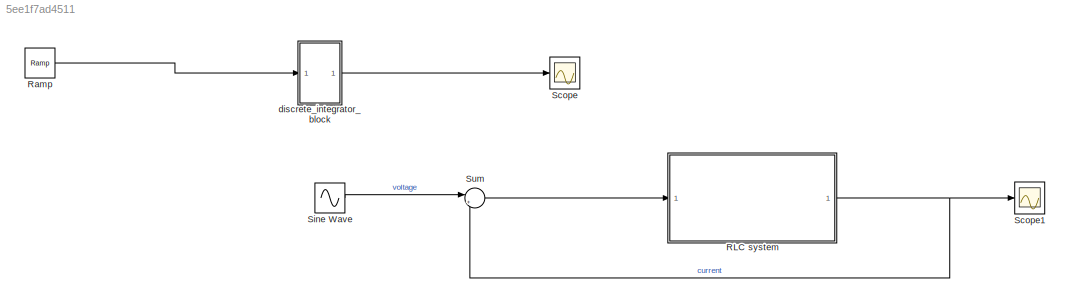
MODEL slx_5ee1f7ad4511
KIND model
CONFIG AbsTol = auto
CONFIG EnableMultiTasking = off
CONFIG FixedStep = 1e-3
CONFIG MaxStep = 1e-3
CONFIG MinStep = auto
CONFIG RelTol = 1e-3
CONFIG SampleTimeConstraint = Unconstrained
CONFIG SolverName = FixedStepDiscrete
CONFIG StartTime = 0.0
CONFIG StopTime = 10.0
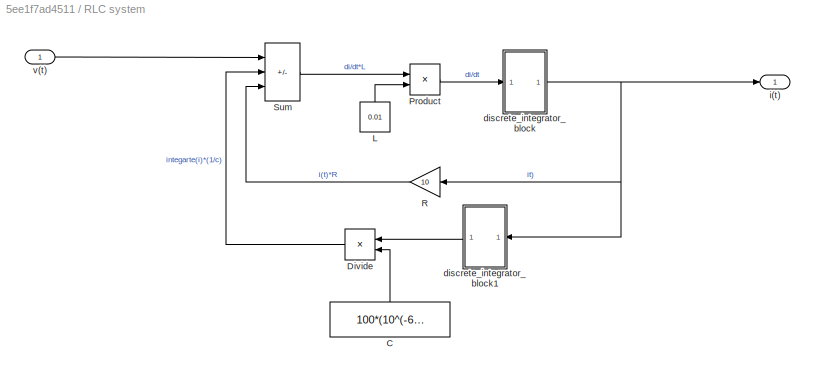
BLOCK [SubSystem] RLC system
BLOCK [Constant] RLC system/C
  NameLocation = right
  Value = 100*(10^(-6))
BLOCK [Product] RLC system/Divide
  Inputs = */
  NameLocation = top
BLOCK [Constant] RLC system/L
  NameLocation = right
  Value = 0.01
BLOCK [Product] RLC system/Product
BLOCK [Gain] RLC system/R
  Gain = 10
  NameLocation = top
BLOCK [Sum] RLC system/Sum
  IconShape = rectangular
  Inputs = |+|-|-
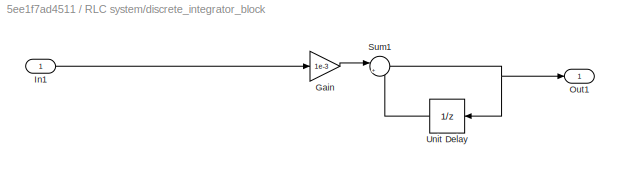
BLOCK [SubSystem] RLC system/discrete_integrator_block
BLOCK [Gain] RLC system/discrete_integrator_block/Gain
  Gain = 1e-3
BLOCK [Inport] RLC system/discrete_integrator_block/In1
BLOCK [Outport] RLC system/discrete_integrator_block/Out1
BLOCK [Sum] RLC system/discrete_integrator_block/Sum1
  Inputs = |++
BLOCK [UnitDelay] RLC system/discrete_integrator_block/Unit Delay
  HasFrameUpgradeWarning = on
  NameLocation = top
  SampleTime = -1
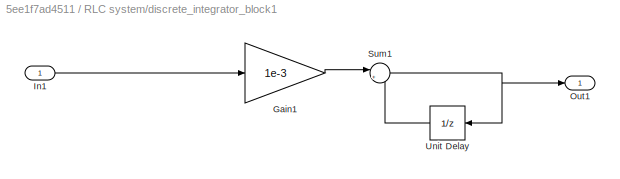
BLOCK [SubSystem] RLC system/discrete_integrator_block1
  NameLocation = top
BLOCK [Gain] RLC system/discrete_integrator_block1/Gain1
  Gain = 1e-3
BLOCK [Inport] RLC system/discrete_integrator_block1/In1
BLOCK [Outport] RLC system/discrete_integrator_block1/Out1
BLOCK [Sum] RLC system/discrete_integrator_block1/Sum1
  Inputs = |++
BLOCK [UnitDelay] RLC system/discrete_integrator_block1/Unit Delay
  HasFrameUpgradeWarning = on
  NameLocation = top
  SampleTime = -1
BLOCK [Outport] RLC system/i(t)
BLOCK [Inport] RLC system/v(t)
BLOCK [Reference] Ramp  REF=simulink/Sources/Ramp
  SourceBlock = simulink/Sources/Ramp
  SourceType = Ramp
BLOCK [Scope] Scope
  Floating = off
  NumInputPorts = 1
  ScopeSpecificationString = Simulink.scopes.TimeScopeBlockCfg('CurrentConfiguration', extmgr.ConfigurationSet(extmgr.Configuration('Core','General UI',true),extmgr.Configuration('Core','Source UI',true),extmgr.Configuration('Sources','WiredSimulink',true),extmgr.Configuration('Visuals','Time Domain',true,'SerializedDisplays',{struct('MinYLimReal','-6.1875','MaxYLimReal','55.6875','YLabelReal','','MinYLimMag','0.00000','MaxYL...<+1476ch>
BLOCK [Scope] Scope1
  Floating = off
  NumInputPorts = 1
  ScopeSpecificationString = Simulink.scopes.TimeScopeBlockCfg('CurrentConfiguration', extmgr.ConfigurationSet(extmgr.Configuration('Core','General UI',true),extmgr.Configuration('Core','Source UI',true),extmgr.Configuration('Sources','WiredSimulink',true,'DataLoggingVariableName','ScopeData1'),extmgr.Configuration('Visuals','Time Domain',true,'SerializedDisplays',{struct('MinYLimReal','-0.000011','MaxYLimReal','0.000011','YL...<+1541ch>
BLOCK [Sin] Sine Wave
  Frequency = 2000
  SampleTime = 0
BLOCK [Sum] Sum
  Inputs = |+-
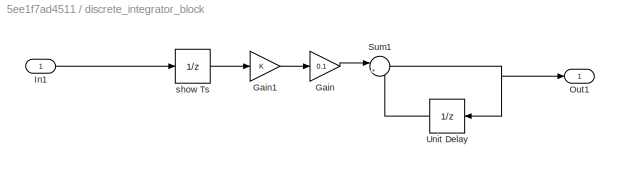
BLOCK [SubSystem] discrete_integrator_block
BLOCK [Gain] discrete_integrator_block/Gain
  Gain = 0.1
BLOCK [Gain] discrete_integrator_block/Gain1
BLOCK [Inport] discrete_integrator_block/In1
BLOCK [Outport] discrete_integrator_block/Out1
BLOCK [Sum] discrete_integrator_block/Sum1
  Inputs = |++
BLOCK [UnitDelay] discrete_integrator_block/Unit Delay
  HasFrameUpgradeWarning = on
  NameLocation = top
  SampleTime = -1
BLOCK [UnitDelay] discrete_integrator_block/show Ts
  HasFrameUpgradeWarning = on
  SampleTime = -1
LINE RLC system/C:1 -> RLC system/Divide:2
LINE RLC system/Divide:1 -> RLC system/Sum:2
LINE RLC system/L:1 -> RLC system/Product:2
LINE RLC system/Product:1 -> RLC system/discrete_integrator_block:1
LINE RLC system/R:1 -> RLC system/Sum:3
LINE RLC system/Sum:1 -> RLC system/Product:1
LINE RLC system/discrete_integrator_block/Gain:1 -> RLC system/discrete_integrator_block/Sum1:1
LINE RLC system/discrete_integrator_block/In1:1 -> RLC system/discrete_integrator_block/Gain:1
NET RLC system/discrete_integrator_block/Sum1:1 -> RLC system/discrete_integrator_block/Out1:1, RLC system/discrete_integrator_block/Unit Delay:1
LINE RLC system/discrete_integrator_block/Unit Delay:1 -> RLC system/discrete_integrator_block/Sum1:2
LINE RLC system/discrete_integrator_block1/Gain1:1 -> RLC system/discrete_integrator_block1/Sum1:1
LINE RLC system/discrete_integrator_block1/In1:1 -> RLC system/discrete_integrator_block1/Gain1:1
NET RLC system/discrete_integrator_block1/Sum1:1 -> RLC system/discrete_integrator_block1/Out1:1, RLC system/discrete_integrator_block1/Unit Delay:1
LINE RLC system/discrete_integrator_block1/Unit Delay:1 -> RLC system/discrete_integrator_block1/Sum1:2
LINE RLC system/discrete_integrator_block1:1 -> RLC system/Divide:1
NET RLC system/discrete_integrator_block:1 -> RLC system/R:1, RLC system/discrete_integrator_block1:1, RLC system/i(t):1
LINE RLC system/v(t):1 -> RLC system/Sum:1
NET RLC system:1 -> Scope1:1, Sum:2
LINE Ramp:1 -> discrete_integrator_block:1
LINE Sine Wave:1 -> Sum:1
LINE Sum:1 -> RLC system:1
LINE discrete_integrator_block/Gain1:1 -> discrete_integrator_block/Gain:1
LINE discrete_integrator_block/Gain:1 -> discrete_integrator_block/Sum1:1
LINE discrete_integrator_block/In1:1 -> discrete_integrator_block/show Ts:1
NET discrete_integrator_block/Sum1:1 -> discrete_integrator_block/Out1:1, discrete_integrator_block/Unit Delay:1
LINE discrete_integrator_block/Unit Delay:1 -> discrete_integrator_block/Sum1:2
LINE discrete_integrator_block/show Ts:1 -> discrete_integrator_block/Gain1:1
LINE discrete_integrator_block:1 -> Scope:1
note: NET lines group one-source signal fan-out (src -> all destinations, sorted); 1:1 wires keep LINE
